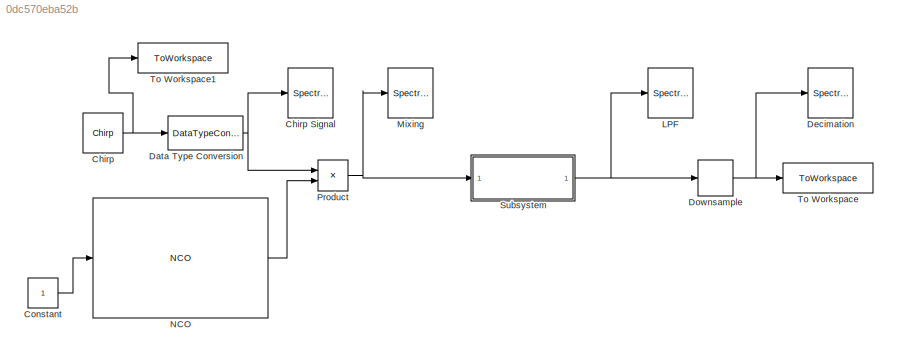
MODEL slx_0dc570eba52b
KIND model
CONFIG AbsTol = auto
CONFIG EnableMultiTasking = off
CONFIG FixedStep = 1/Fs
CONFIG MaxStep = auto
CONFIG MinStep = auto
CONFIG RelTol = 1e-3
CONFIG SampleTimeConstraint = Unconstrained
CONFIG SolverName = FixedStepAuto
CONFIG StartTime = 0.0
CONFIG StopTime = inf
BLOCK [Reference] Chirp  REF=dspsrcs4/Chirp
  SourceBlock = dspsrcs4/Chirp
  SourceType = Chirp
BLOCK [SpectrumAnalyzer] Chirp Signal
  GraphicalSettings = {"GraphicalSettings":{"Style":{"BackgroundColor":[0.12941176470588237,0.12941176470588237,0.12941176470588237],"AxesColor":[0.070588235294117646,0.070588235294117646,0.070588235294117646],"LabelsColor":[0.85098039215686272,0.85098039215686272,0.85098039215686272],"PreserveColors":false,"Visible":true,"LineStyle":["-"],"LineWidth":1.5,"BarWidth":0.9,"LineColor":[1,0.90980392156862744,0.392156862745...<+101ch>  <repeated x4 — deduplicated; at blocks: Chirp Signal, Decimation, LPF, Mixing>
  ScopeFrameLocation = window
  Span = 60000000
  StartFrequency = -30000000
  StopFrequency = 30000000
  Visible = on
  WasSavedAsWebScope = on
  WindowInvariantSamplesPerUpdate = on
  WindowPosition = [2.000000,458.000000,766.000000,377.000000,]
  YLimits = [-41.4607 7.3068]
BLOCK [Constant] Constant
  OutDataTypeStr = boolean
  SampleTime = 1/Fs
BLOCK [DataTypeConversion] Data Type Conversion
  RndMeth = Floor
  SaturateOnIntegerOverflow = off
BLOCK [SpectrumAnalyzer] Decimation
  ScopeFrameLocation = window
  Span = 60000000
  StartFrequency = -30000000
  StopFrequency = 30000000
  Visible = on
  WasSavedAsWebScope = on
  WindowInvariantSamplesPerUpdate = on
  WindowPosition = [770.000000,50.000000,766.000000,377.000000,]
  YLimits = [-88.0062 5.9771]
BLOCK [DownSample] Downsample
  AllowArbitraryFixedInput = on
  InputProcessing = Elements as channels (sample based)
BLOCK [SpectrumAnalyzer] LPF
  ScopeFrameLocation = window
  Span = 60000000
  StartFrequency = -30000000
  StopFrequency = 30000000
  Visible = on
  WasSavedAsWebScope = on
  WindowInvariantSamplesPerUpdate = on
  WindowPosition = [2.000000,50.000000,766.000000,377.000000,]
  YLimits = [-141.7912 13.5098]
BLOCK [SpectrumAnalyzer] Mixing
  ScopeFrameLocation = window
  SelectedToolstripTab = spectrumAnalyzerToolstrip.spectrumTab
  Span = 60000000
  StartFrequency = -30000000
  StopFrequency = 30000000
  Visible = on
  WasSavedAsWebScope = on
  WindowInvariantSamplesPerUpdate = on
  WindowPosition = [770.000000,458.000000,766.000000,377.000000,]
  YLimits = [-18.8566 1.3442]
BLOCK [Reference] NCO  REF=dsphdlsigops2/NCO
  SourceBlock = dsphdlsigops2/NCO
  SourceType = NCO
BLOCK [Product] Product
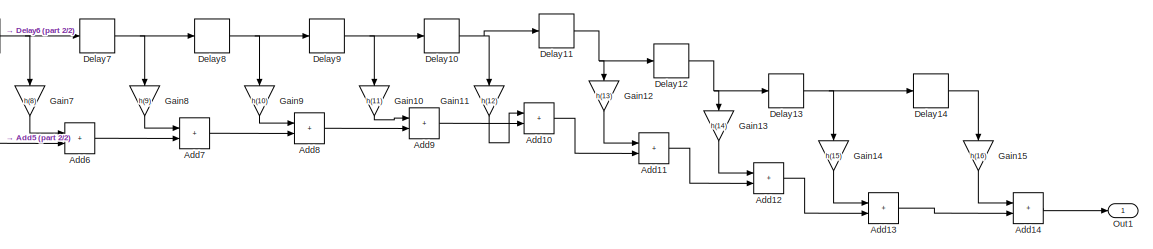
[diagram: Subsystem - part 1/2, right side, full height]
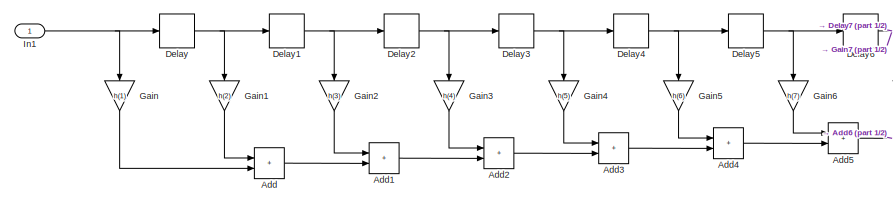
[diagram: Subsystem - part 2/2, middle left region]
BLOCK [SubSystem] Subsystem
BLOCK [Sum] Subsystem/Add
  IconShape = rectangular
BLOCK [Sum] Subsystem/Add1
  IconShape = rectangular
BLOCK [Sum] Subsystem/Add10
  IconShape = rectangular
BLOCK [Sum] Subsystem/Add11
  IconShape = rectangular
BLOCK [Sum] Subsystem/Add12
  IconShape = rectangular
BLOCK [Sum] Subsystem/Add13
  IconShape = rectangular
BLOCK [Sum] Subsystem/Add14
  IconShape = rectangular
BLOCK [Sum] Subsystem/Add2
  IconShape = rectangular
BLOCK [Sum] Subsystem/Add3
  IconShape = rectangular
BLOCK [Sum] Subsystem/Add4
  IconShape = rectangular
BLOCK [Sum] Subsystem/Add5
  IconShape = rectangular
BLOCK [Sum] Subsystem/Add6
  IconShape = rectangular
BLOCK [Sum] Subsystem/Add7
  IconShape = rectangular
BLOCK [Sum] Subsystem/Add8
  IconShape = rectangular
BLOCK [Sum] Subsystem/Add9
  IconShape = rectangular
BLOCK [Delay] Subsystem/Delay
  DelayLength = 1
  InitialCondition = 0
  InputPortMap = u0
BLOCK [Delay] Subsystem/Delay1
  DelayLength = 1
  InitialCondition = 0
  InputPortMap = u0
BLOCK [Delay] Subsystem/Delay10
  DelayLength = 1
  InitialCondition = 0
  InputPortMap = u0
BLOCK [Delay] Subsystem/Delay11
  DelayLength = 1
  InitialCondition = 0
  InputPortMap = u0
BLOCK [Delay] Subsystem/Delay12
  DelayLength = 1
  InitialCondition = 0
  InputPortMap = u0
BLOCK [Delay] Subsystem/Delay13
  DelayLength = 1
  InitialCondition = 0
  InputPortMap = u0
BLOCK [Delay] Subsystem/Delay14
  DelayLength = 1
  InitialCondition = 0
  InputPortMap = u0
BLOCK [Delay] Subsystem/Delay2
  DelayLength = 1
  InitialCondition = 0
  InputPortMap = u0
BLOCK [Delay] Subsystem/Delay3
  DelayLength = 1
  InitialCondition = 0
  InputPortMap = u0
BLOCK [Delay] Subsystem/Delay4
  DelayLength = 1
  InitialCondition = 0
  InputPortMap = u0
BLOCK [Delay] Subsystem/Delay5
  DelayLength = 1
  InitialCondition = 0
  InputPortMap = u0
BLOCK [Delay] Subsystem/Delay6
  DelayLength = 1
  InitialCondition = 0
  InputPortMap = u0
BLOCK [Delay] Subsystem/Delay7
  DelayLength = 1
  InitialCondition = 0
  InputPortMap = u0
BLOCK [Delay] Subsystem/Delay8
  DelayLength = 1
  InitialCondition = 0
  InputPortMap = u0
BLOCK [Delay] Subsystem/Delay9
  DelayLength = 1
  InitialCondition = 0
  InputPortMap = u0
BLOCK [Gain] Subsystem/Gain
  Gain = h(1)
  NameLocation = left
BLOCK [Gain] Subsystem/Gain1
  Gain = h(2)
  NameLocation = left
BLOCK [Gain] Subsystem/Gain10
  Gain = h(11)
  NameLocation = left
BLOCK [Gain] Subsystem/Gain11
  Gain = h(12)
  NameLocation = left
BLOCK [Gain] Subsystem/Gain12
  Gain = h(13)
  NameLocation = left
BLOCK [Gain] Subsystem/Gain13
  Gain = h(14)
  NameLocation = left
BLOCK [Gain] Subsystem/Gain14
  Gain = h(15)
  NameLocation = left
BLOCK [Gain] Subsystem/Gain15
  Gain = h(16)
  NameLocation = left
BLOCK [Gain] Subsystem/Gain2
  Gain = h(3)
  NameLocation = left
BLOCK [Gain] Subsystem/Gain3
  Gain = h(4)
  NameLocation = left
BLOCK [Gain] Subsystem/Gain4
  Gain = h(5)
  NameLocation = left
BLOCK [Gain] Subsystem/Gain5
  Gain = h(6)
  NameLocation = left
BLOCK [Gain] Subsystem/Gain6
  Gain = h(7)
  NameLocation = left
BLOCK [Gain] Subsystem/Gain7
  Gain = h(8)
  NameLocation = left
BLOCK [Gain] Subsystem/Gain8
  Gain = h(9)
  NameLocation = left
BLOCK [Gain] Subsystem/Gain9
  Gain = h(10)
  NameLocation = left
BLOCK [Inport] Subsystem/In1
BLOCK [Outport] Subsystem/Out1
BLOCK [ToWorkspace] To Workspace
  FixptAsFi = on
  MaxDataPoints = inf
  SampleTime = -1
  SaveFormat = Timeseries
  VariableName = DDCOuput
BLOCK [ToWorkspace] To Workspace1
  FixptAsFi = on
  MaxDataPoints = inf
  SampleTime = -1
  SaveFormat = Timeseries
  VariableName = chirp
NET Chirp:1 -> Data Type Conversion:1, To Workspace1:1
LINE Constant:1 -> NCO:1
NET Data Type Conversion:1 -> Chirp Signal:1, Product:1
NET Downsample:1 -> Decimation:1, To Workspace:1
LINE NCO:1 -> Product:2
NET Product:1 -> Mixing:1, Subsystem:1
LINE Subsystem/Add10:1 -> Subsystem/Add11:2
LINE Subsystem/Add11:1 -> Subsystem/Add12:2
LINE Subsystem/Add12:1 -> Subsystem/Add13:2
LINE Subsystem/Add13:1 -> Subsystem/Add14:2
LINE Subsystem/Add14:1 -> Subsystem/Out1:1
LINE Subsystem/Add1:1 -> Subsystem/Add2:2
LINE Subsystem/Add2:1 -> Subsystem/Add3:2
LINE Subsystem/Add3:1 -> Subsystem/Add4:2
LINE Subsystem/Add4:1 -> Subsystem/Add5:2
LINE Subsystem/Add5:1 -> Subsystem/Add6:2
LINE Subsystem/Add6:1 -> Subsystem/Add7:2
LINE Subsystem/Add7:1 -> Subsystem/Add8:2
LINE Subsystem/Add8:1 -> Subsystem/Add9:2
LINE Subsystem/Add9:1 -> Subsystem/Add10:2
LINE Subsystem/Add:1 -> Subsystem/Add1:2
NET Subsystem/Delay10:1 -> Subsystem/Delay11:1, Subsystem/Gain11:1
NET Subsystem/Delay11:1 -> Subsystem/Delay12:1, Subsystem/Gain12:1
NET Subsystem/Delay12:1 -> Subsystem/Delay13:1, Subsystem/Gain13:1
NET Subsystem/Delay13:1 -> Subsystem/Delay14:1, Subsystem/Gain14:1
LINE Subsystem/Delay14:1 -> Subsystem/Gain15:1
NET Subsystem/Delay1:1 -> Subsystem/Delay2:1, Subsystem/Gain2:1
NET Subsystem/Delay2:1 -> Subsystem/Delay3:1, Subsystem/Gain3:1
NET Subsystem/Delay3:1 -> Subsystem/Delay4:1, Subsystem/Gain4:1
NET Subsystem/Delay4:1 -> Subsystem/Delay5:1, Subsystem/Gain5:1
NET Subsystem/Delay5:1 -> Subsystem/Delay6:1, Subsystem/Gain6:1
NET Subsystem/Delay6:1 -> Subsystem/Delay7:1, Subsystem/Gain7:1
NET Subsystem/Delay7:1 -> Subsystem/Delay8:1, Subsystem/Gain8:1
NET Subsystem/Delay8:1 -> Subsystem/Delay9:1, Subsystem/Gain9:1
NET Subsystem/Delay9:1 -> Subsystem/Delay10:1, Subsystem/Gain10:1
NET Subsystem/Delay:1 -> Subsystem/Delay1:1, Subsystem/Gain1:1
LINE Subsystem/Gain10:1 -> Subsystem/Add9:1
LINE Subsystem/Gain11:1 -> Subsystem/Add10:1
LINE Subsystem/Gain12:1 -> Subsystem/Add11:1
LINE Subsystem/Gain13:1 -> Subsystem/Add12:1
LINE Subsystem/Gain14:1 -> Subsystem/Add13:1
LINE Subsystem/Gain15:1 -> Subsystem/Add14:1
LINE Subsystem/Gain1:1 -> Subsystem/Add:1
LINE Subsystem/Gain2:1 -> Subsystem/Add1:1
LINE Subsystem/Gain3:1 -> Subsystem/Add2:1
LINE Subsystem/Gain4:1 -> Subsystem/Add3:1
LINE Subsystem/Gain5:1 -> Subsystem/Add4:1
LINE Subsystem/Gain6:1 -> Subsystem/Add5:1
LINE Subsystem/Gain7:1 -> Subsystem/Add6:1
LINE Subsystem/Gain8:1 -> Subsystem/Add7:1
LINE Subsystem/Gain9:1 -> Subsystem/Add8:1
LINE Subsystem/Gain:1 -> Subsystem/Add:2
NET Subsystem/In1:1 -> Subsystem/Delay:1, Subsystem/Gain:1
NET Subsystem:1 -> Downsample:1, LPF:1
note: NET lines group one-source signal fan-out (src -> all destinations, sorted); 1:1 wires keep LINE
